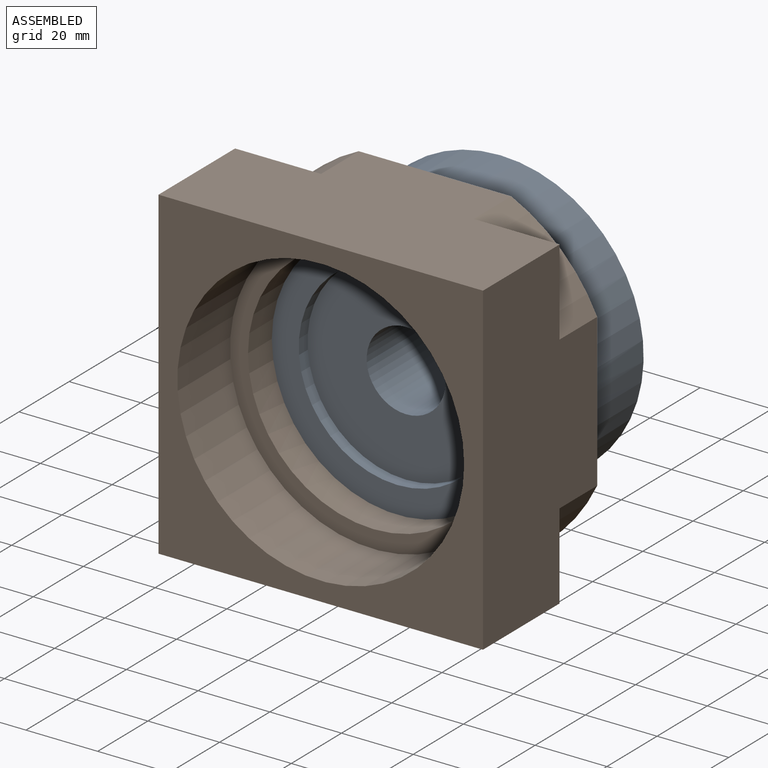
[diagram: assembled view]
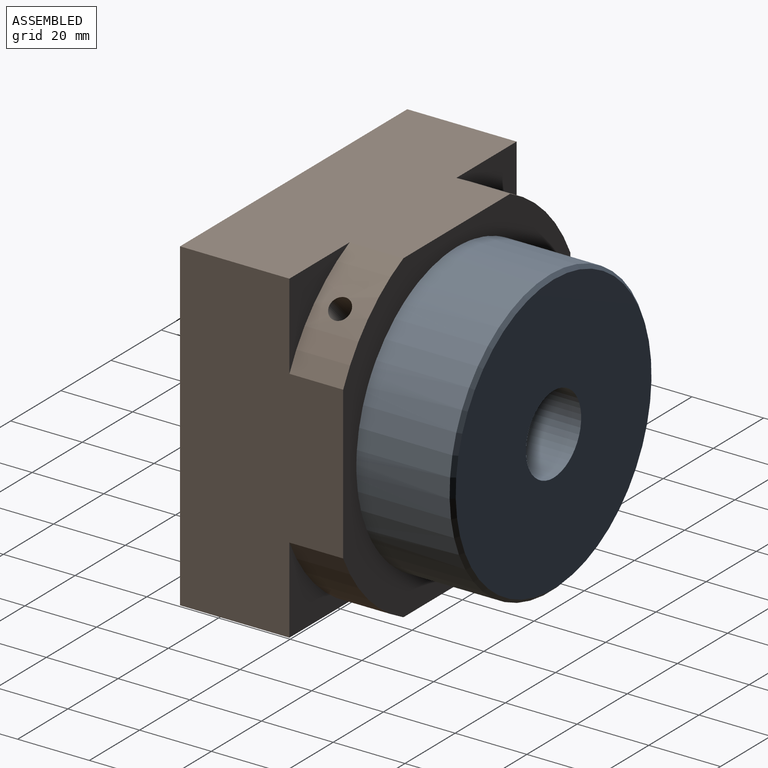
[diagram: assembled view, second angle]
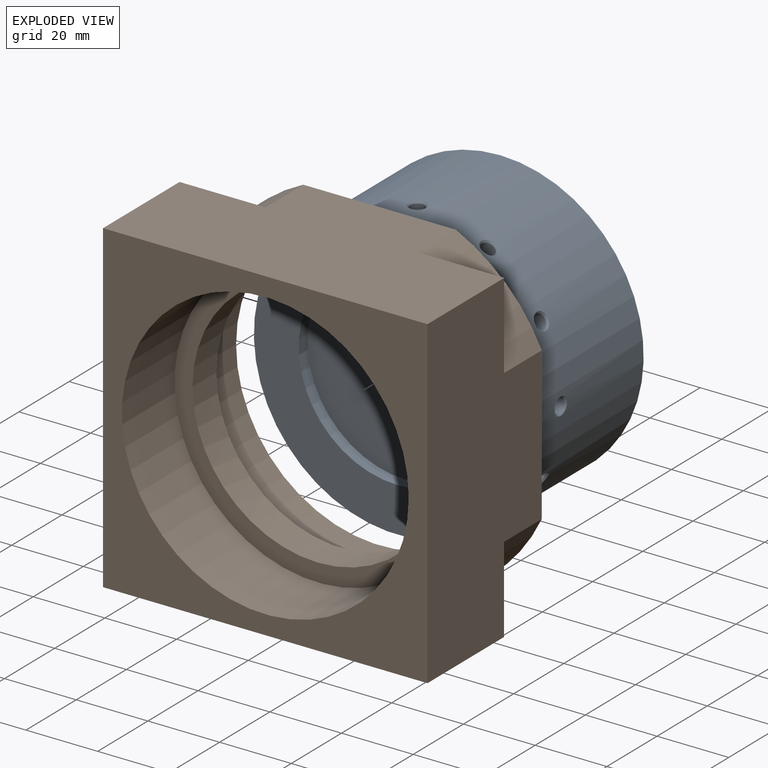
[diagram: exploded view]
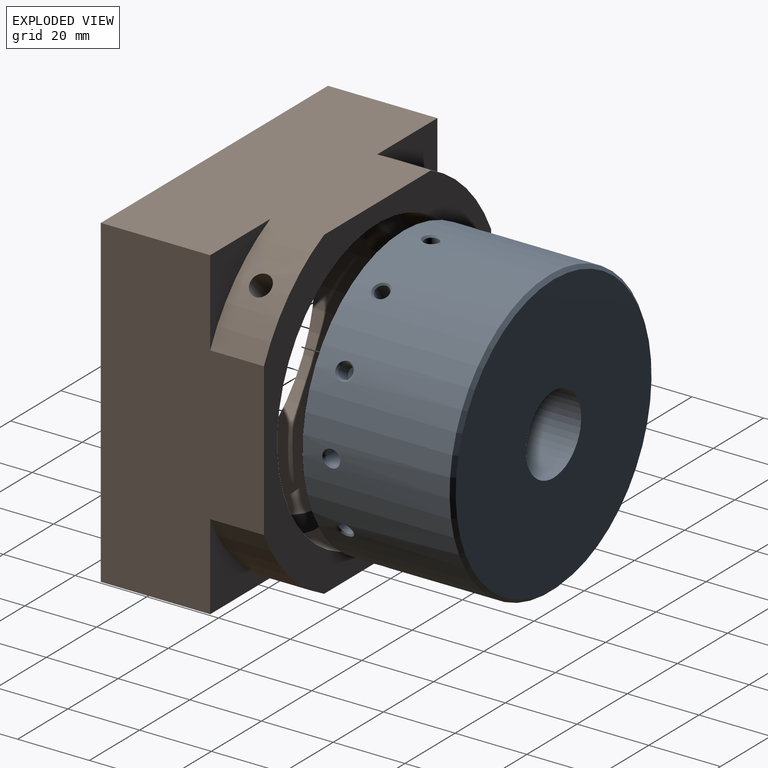
[diagram: exploded view, second angle]
ASSEMBLY  parts=2 mates=2
PART A: 43 faces, bbox 80x42x80 mm
  f0: cylinder r=40mm len=80mm, axis (0,1,0), area 10077mm2, adj f2,f6,f7,f10,f13,f16,f19,f22
  f1: plane 78x78mm, normal (0,-1,0), area 4398.2mm2, adj f5,f6
  f2: plane 80x80mm, normal (0,1,0), area 2650.7mm2, adj f0,f3
  f3: cylinder r=27.5mm len=55mm, axis (0,1,0), area 604.8mm2, adj f2,f4
  f4: plane 55x55mm, normal (0,1,0), area 1995.7mm2, adj f3,f5
  f5: cylinder r=11mm len=38.5mm, axis (0,-1,0), area 2660.9mm2, adj f1,f4
  f6: cone r=39mm half-angle=45deg, axis (0,1,0), area 351mm2, adj f0,f1
  f7: cone r=2mm half-angle=45deg, axis (0,0,-1), area 9.2mm2, adj f0,f8
  f8: cylinder r=2mm len=4.5mm, axis (0,0,1), area 56.5mm2, adj f7,f9
  f9: cone r=2mm half-angle=65.6deg, axis (0,0,-1), area 13.8mm2, adj f8
  f10: cone r=2mm half-angle=45deg, axis (-0.5,0,-0.87), area 9.2mm2, adj f0,f11
  f11: cylinder r=2mm len=5.9mm, axis (0.5,0,0.87), area 56.5mm2, adj f10,f12
  f12: cone r=2mm half-angle=65.6deg, axis (-0.5,0,-0.87), area 13.8mm2, adj f11
  f13: cone r=2mm half-angle=45deg, axis (-0.87,0,-0.5), area 9.2mm2, adj f0,f14
  f14: cylinder r=2mm len=5.9mm, axis (0.87,0,0.5), area 56.5mm2, adj f13,f15
  f15: cone r=2mm half-angle=65.6deg, axis (-0.87,0,-0.5), area 13.8mm2, adj f14
  f16: cone r=2mm half-angle=45deg, axis (-1,0,0), area 9.2mm2, adj f0,f17
  f17: cylinder r=2mm len=4.5mm, axis (1,0,0), area 56.5mm2, adj f16,f18
  f18: cone r=2mm half-angle=65.6deg, axis (-1,0,0), area 13.8mm2, adj f17
  f19: cone r=2mm half-angle=45deg, axis (-0.87,0,0.5), area 9.2mm2, adj f0,f20
  f20: cylinder r=2mm len=5.9mm, axis (0.87,0,-0.5), area 56.5mm2, adj f19,f21
  f21: cone r=2mm half-angle=65.6deg, axis (-0.87,0,0.5), area 13.8mm2, adj f20
  f22: cone r=2mm half-angle=45deg, axis (-0.5,0,0.87), area 9.2mm2, adj f0,f23
  f23: cylinder r=2mm len=5.9mm, axis (0.5,0,-0.87), area 56.5mm2, adj f22,f24
  f24: cone r=2mm half-angle=65.6deg, axis (-0.5,0,0.87), area 13.8mm2, adj f23
  f25: cone r=2mm half-angle=45deg, axis (0,0,1), area 9.2mm2, adj f0,f26
  f26: cylinder r=2mm len=4.5mm, axis (0,0,-1), area 56.5mm2, adj f25,f27
  f27: cone r=2mm half-angle=65.6deg, axis (0,0,1), area 13.8mm2, adj f26
  f28: cone r=2mm half-angle=45deg, axis (0.5,0,0.87), area 9.2mm2, adj f0,f29
  f29: cylinder r=2mm len=5.9mm, axis (-0.5,0,-0.87), area 56.5mm2, adj f28,f30
  f30: cone r=2mm half-angle=65.6deg, axis (0.5,0,0.87), area 13.8mm2, adj f29
  f31: cone r=2mm half-angle=45deg, axis (0.87,0,0.5), area 9.2mm2, adj f0,f32
  f32: cylinder r=2mm len=5.9mm, axis (-0.87,0,-0.5), area 56.5mm2, adj f31,f33
  f33: cone r=2mm half-angle=65.6deg, axis (0.87,0,0.5), area 13.8mm2, adj f32
  f34: cone r=2mm half-angle=45deg, axis (1,0,0), area 9.2mm2, adj f0,f35
  f35: cylinder r=2mm len=4.5mm, axis (-1,0,0), area 56.5mm2, adj f34,f36
  f36: cone r=2mm half-angle=65.6deg, axis (1,0,0), area 13.8mm2, adj f35
  f37: cone r=2mm half-angle=45deg, axis (0.87,0,-0.5), area 9.2mm2, adj f0,f38
  f38: cylinder r=2mm len=5.9mm, axis (-0.87,0,0.5), area 56.5mm2, adj f37,f39
  f39: cone r=2mm half-angle=65.6deg, axis (0.87,0,-0.5), area 13.8mm2, adj f38
  f40: cone r=2mm half-angle=45deg, axis (0.5,0,-0.87), area 9.2mm2, adj f0,f41
  f41: cylinder r=2mm len=5.9mm, axis (-0.5,0,0.87), area 56.5mm2, adj f40,f42
  f42: cone r=2mm half-angle=65.6deg, axis (0.5,0,-0.87), area 13.8mm2, adj f41
PART B: 20 faces, bbox 90.5x45.5x90.5 mm
  f0: cylinder r=40mm len=80mm, axis (0,1,0), area 3741.5mm2, adj f8,f9,f19
  f1: cylinder r=50mm len=23.98mm, axis (0,1,0), area 490.7mm2, adj f2,f5,f8,f14,f19
  f2: plane 90.5x45.5mm, normal (0,0,1), area 3398.4mm2, adj f1,f3,f5,f7,f8,f14,f17,f18
  f3: plane 90.5x45.5mm, normal (-1,0,0), area 3398.4mm2, adj f2,f4,f7,f8,f15,f16,f17,f18
  f4: plane 90.5x45.5mm, normal (0,0,-1), area 3398.4mm2, adj f3,f5,f7,f8,f12,f13,f15,f16
  f5: plane 90.5x45.5mm, normal (1,0,0), area 3398.4mm2, adj f1,f2,f4,f7,f8,f12,f13,f14
  f6: cylinder r=35mm len=70mm, axis (0,1,0), area 2089.2mm2, adj f9,f10
  f7: plane 90.5x90.5mm, normal (0,-1,0), area 3163.7mm2, adj f2,f3,f4,f5,f11
  f8: plane 90.5x90.5mm, normal (0,1,0), area 2283.2mm2, adj f0,f1,f2,f3,f4,f5,f13,f16
  f9: plane 80x80mm, normal (0,1,0), area 1178.1mm2, adj f0,f6
  f10: plane 80x80mm, normal (0,-1,0), area 1178.1mm2, adj f6,f11
  f11: cylinder r=40mm len=80mm, axis (0,-1,0), area 5277.9mm2, adj f7,f10
  f12: plane 23.98x23.98mm, normal (0,1,0), area 220.1mm2, adj f4,f5,f13
  f13: cylinder r=50mm len=23.98mm, axis (0,1,0), area 519mm2, adj f4,f5,f8,f12
  f14: plane 23.98x23.98mm, normal (0,1,0), area 220.1mm2, adj f1,f2,f5
  f15: plane 23.98x23.98mm, normal (0,1,0), area 220.1mm2, adj f3,f4,f16
  f16: cylinder r=50mm len=23.98mm, axis (0,1,0), area 519mm2, adj f3,f4,f8,f15
  f17: plane 23.98x23.98mm, normal (0,1,0), area 220.1mm2, adj f2,f3,f18
  f18: cylinder r=50mm len=23.98mm, axis (0,1,0), area 519mm2, adj f2,f3,f8,f17
  f19: cylinder r=3mm len=11.42mm, axis (0.7,0,0.71), area 188.7mm2, adj f0,f1
PLACE A rot(axis=(1,0,0),180deg) t=(38.07,22.11,-1.49)mm
PLACE B t=(38.07,37.11,-1.49)mm
MATE cylindrical A.f5 <-> B.f0  axis (0,-1,0) through (38.07,25.61,-1.49)mm
MATE planar A.f0 <-> B.f0  axis (0,-1,0) through (38.07,22.11,-1.49)mm
